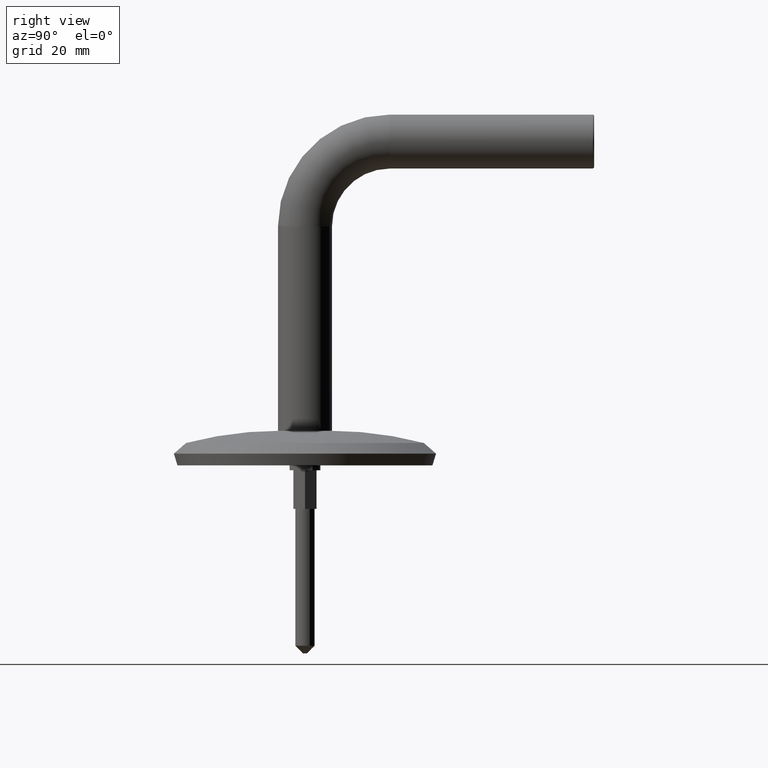
[diagram: clean part render]
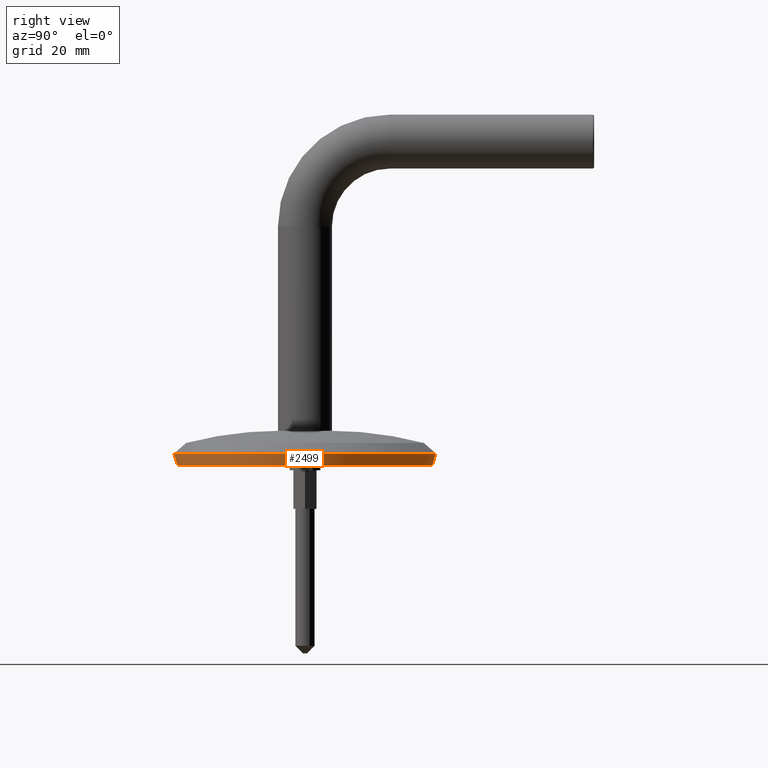
[diagram: same view with one face highlighted and labeled with its STEP entity id]
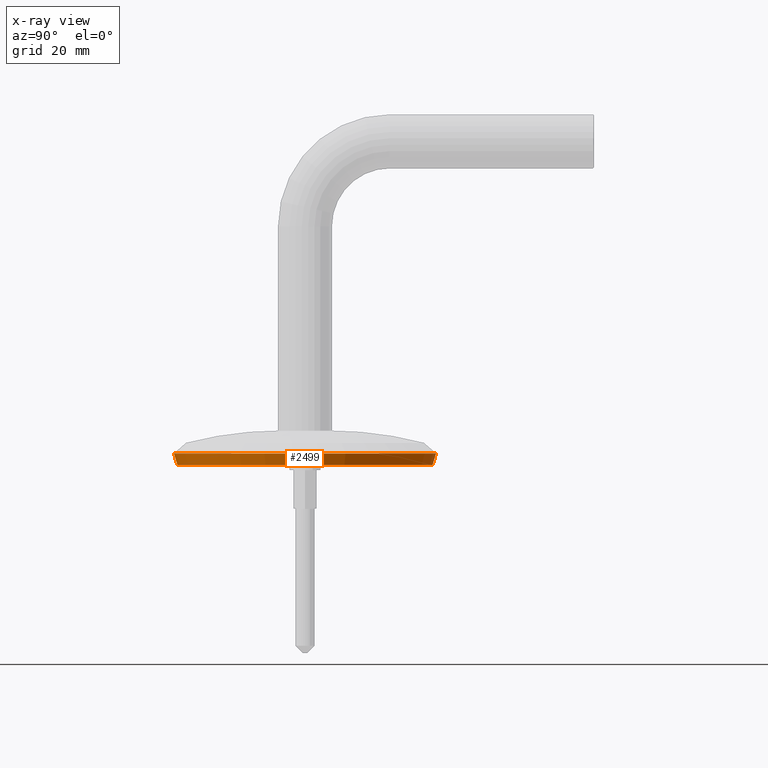
[diagram: x-ray of the same camera — body ghosted, the highlighted face saturated]
A machine part, right view. The second image highlights one B-rep face of the part: STEP entity #2499.
The next image is the same camera in x-ray: the body ghosted, the highlighted face saturated — about 0% of this face is hidden behind the body in this view.
In plain terms, the highlighted conical surface has half-angle 16.97 deg.
Its self-contained STEP definition (entity closure, byte-faithful):
#60 = CARTESIAN_POINT ( 'NONE',  ( 4.049063176012528795E-15, -6.938893903907228378E-15, 33.06310994183502316 ) ) ;
#395 = EDGE_CURVE ( 'NONE', #13641, #3954, #10646, .T. ) ;
#547 = CONICAL_SURFACE ( 'NONE', #7956, 33.06310994183501606, 0.2961772688391122177 ) ;
#686 = EDGE_LOOP ( 'NONE', ( #6187, #862, #7159, #8609 ) ) ;
#862 = ORIENTED_EDGE ( 'NONE', *, *, #395, .T. ) ;
#896 = FACE_OUTER_BOUND ( 'NONE', #686, .T. ) ;
#963 = DIRECTION ( 'NONE',  ( 0.000000000000000000, 0.000000000000000000, -1.000000000000000000 ) ) ;
#2499 = ADVANCED_FACE ( 'NONE', ( #896 ), #547, .T. ) ;
#2563 = CARTESIAN_POINT ( 'NONE',  ( 0.000000000000000000, 0.000000000000000000, 33.06310994183501606 ) ) ;
#3954 = VERTEX_POINT ( 'NONE', #10322 ) ;
#4399 = DIRECTION ( 'NONE',  ( 0.000000000000000000, 1.000000000000000000, 0.000000000000000000 ) ) ;
#4532 = CARTESIAN_POINT ( 'NONE',  ( 0.000000000000000000, -6.938893903907228378E-15, -33.06310994183502316 ) ) ;
#4853 = VERTEX_POINT ( 'NONE', #12684 ) ;
#5089 = CARTESIAN_POINT ( 'NONE',  ( 0.000000000000000000, 0.000000000000000000, 0.000000000000000000 ) ) ;
#5244 = CIRCLE ( 'NONE', #11129, 33.06310994183501606 ) ;
#5456 = DIRECTION ( 'NONE',  ( -0.000000000000000000, -1.000000000000000000, -0.000000000000000000 ) ) ;
#6187 = ORIENTED_EDGE ( 'NONE', *, *, #13468, .F. ) ;
#6280 = DIRECTION ( 'NONE',  ( -0.000000000000000000, -1.000000000000000000, -0.000000000000000000 ) ) ;
#6823 = DIRECTION ( 'NONE',  ( 0.000000000000000000, 0.9564592003886491778, 0.2918660617336416019 ) ) ;
#6861 = VECTOR ( 'NONE', #10927, 1000.000000000000000 ) ;
#6901 = EDGE_CURVE ( 'NONE', #12075, #4853, #13466, .T. ) ;
#6912 = AXIS2_PLACEMENT_3D ( 'NONE', #11836, #5456, #7587 ) ;
#7159 = ORIENTED_EDGE ( 'NONE', *, *, #12657, .T. ) ;
#7587 = DIRECTION ( 'NONE',  ( 0.000000000000000000, 0.000000000000000000, -1.000000000000000000 ) ) ;
#7956 = AXIS2_PLACEMENT_3D ( 'NONE', #10490, #4399, #10693 ) ;
#8609 = ORIENTED_EDGE ( 'NONE', *, *, #6901, .F. ) ;
#10082 = CIRCLE ( 'NONE', #6912, 34.00000000000000000 ) ;
#10322 = CARTESIAN_POINT ( 'NONE',  ( 0.000000000000000000, 3.070234033247562611, -34.00000000000000000 ) ) ;
#10490 = CARTESIAN_POINT ( 'NONE',  ( 0.000000000000000000, 0.000000000000000000, 0.000000000000000000 ) ) ;
#10626 = VECTOR ( 'NONE', #6823, 1000.000000000000000 ) ;
#10646 = LINE ( 'NONE', #11962, #6861 ) ;
#10693 = DIRECTION ( 'NONE',  ( 0.000000000000000000, 0.000000000000000000, 1.000000000000000000 ) ) ;
#10927 = DIRECTION ( 'NONE',  ( 3.574328382818480219E-17, 0.9564592003886491778, -0.2918660617336416019 ) ) ;
#11129 = AXIS2_PLACEMENT_3D ( 'NONE', #5089, #6280, #963 ) ;
#11836 = CARTESIAN_POINT ( 'NONE',  ( 0.000000000000000000, 3.070234033247562611, 0.000000000000000000 ) ) ;
#11962 = CARTESIAN_POINT ( 'NONE',  ( 4.049063176012528006E-15, 0.000000000000000000, -33.06310994183501606 ) ) ;
#12075 = VERTEX_POINT ( 'NONE', #60 ) ;
#12657 = EDGE_CURVE ( 'NONE', #3954, #4853, #10082, .T. ) ;
#12684 = CARTESIAN_POINT ( 'NONE',  ( 4.163799117101000559E-15, 3.070234033247562611, 34.00000000000000000 ) ) ;
#13466 = LINE ( 'NONE', #2563, #10626 ) ;
#13468 = EDGE_CURVE ( 'NONE', #13641, #12075, #5244, .T. ) ;
#13641 = VERTEX_POINT ( 'NONE', #4532 ) ;